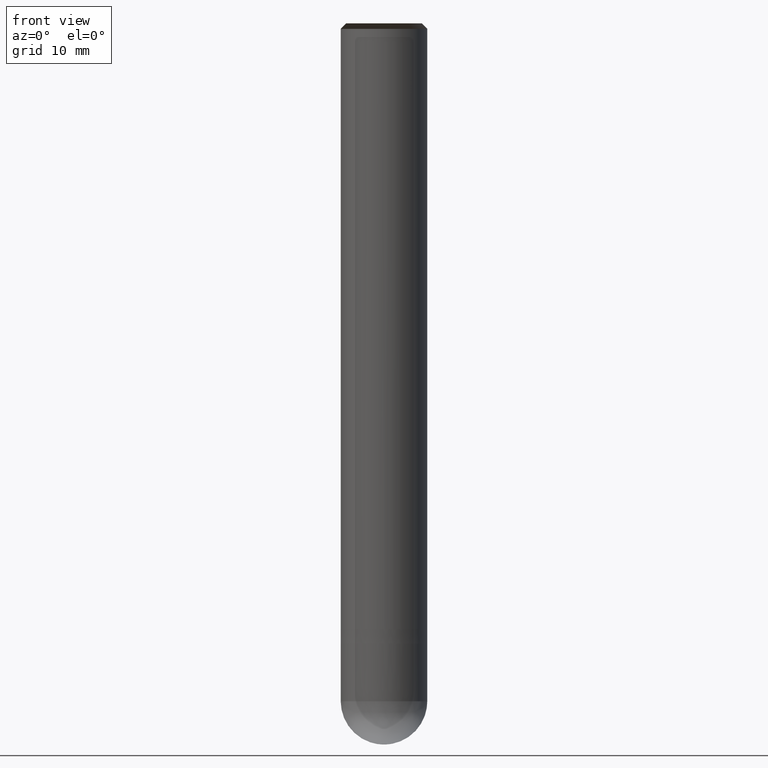
[diagram: clean part render]
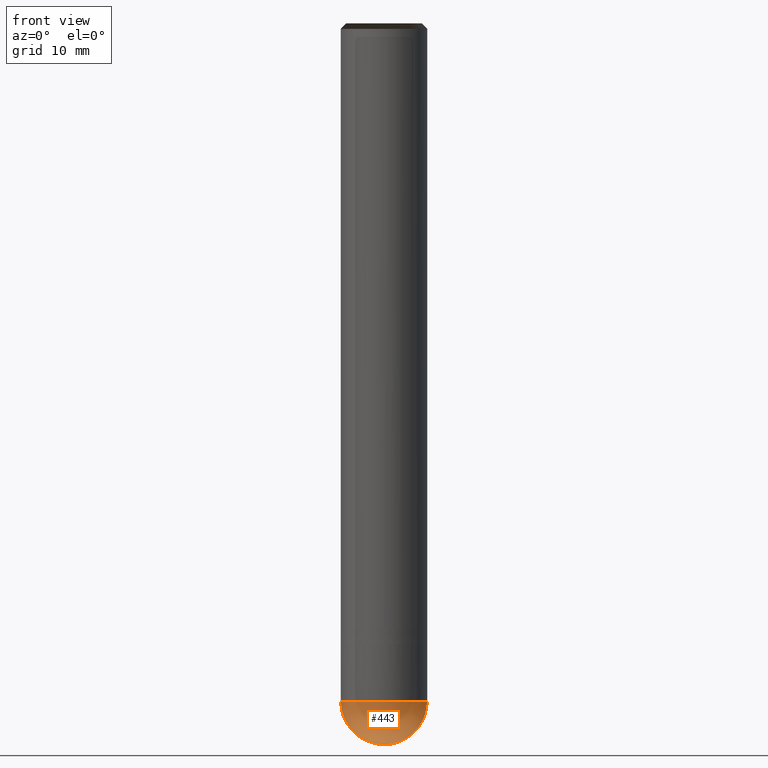
[diagram: same view with one face highlighted and labeled with its STEP entity id]
A machine part, front view. The second image highlights one B-rep face of the part: STEP entity #443.
In plain terms, the highlighted face is a freeform B-spline surface patch.
Its self-contained STEP definition (entity closure, byte-faithful):
#320=CARTESIAN_POINT('',(0.0,0.0,-16.0));
#321=CARTESIAN_POINT('',(6.0,0.0,-16.0));
#325=CARTESIAN_POINT('',(-6.0,0.0,-16.0));
#326=CARTESIAN_POINT('',(6.0,0.0,-10.0));
#330=CARTESIAN_POINT('',(-6.0,0.0,-10.0));
#337=CARTESIAN_POINT('',(-6.0,-6.0,-16.0));
#338=CARTESIAN_POINT('',(0.0,-6.0,-16.0));
#339=CARTESIAN_POINT('',(6.0,-6.0,-16.0));
#340=CARTESIAN_POINT('',(-6.0,-6.0,-10.0));
#341=CARTESIAN_POINT('',(0.0,-6.0,-10.0));
#342=CARTESIAN_POINT('',(6.0,-6.0,-10.0));
#428=(
BOUNDED_SURFACE()
B_SPLINE_SURFACE(2,2,(
(#320,#320,#320,#320,#320),
(#325,#337,#338,#339,#321),
(#330,#340,#341,#342,#326)
), .UNSPECIFIED.,.F.,.F.,.F.)
B_SPLINE_SURFACE_WITH_KNOTS((3,3),(3,2,3),(
0.0,1.0),(
0.0,0.5,1.0), .UNSPECIFIED.)
GEOMETRIC_REPRESENTATION_ITEM()
RATIONAL_B_SPLINE_SURFACE(((1.0,0.707106781187,1.0,0.707106781187,1.0),
(0.707106781187,0.5,0.707106781187,0.5,0.707106781187),
(1.0,0.707106781187,1.0,0.707106781187,1.0)
))
REPRESENTATION_ITEM('')
SURFACE()
);
#429=(
BOUNDED_CURVE()
B_SPLINE_CURVE(2,(#326,#321,#320),.UNSPECIFIED.,.F.,.F.)
B_SPLINE_CURVE_WITH_KNOTS((3,3),
(0.0,1.0),.UNSPECIFIED.)
CURVE()
GEOMETRIC_REPRESENTATION_ITEM()
RATIONAL_B_SPLINE_CURVE((1.0,0.707106781187,1.0))
REPRESENTATION_ITEM('')
);
#430=(
BOUNDED_CURVE()
B_SPLINE_CURVE(2,(#320,#325,#330),.UNSPECIFIED.,.F.,.F.)
B_SPLINE_CURVE_WITH_KNOTS((3,3),
(0.0,1.0),.UNSPECIFIED.)
CURVE()
GEOMETRIC_REPRESENTATION_ITEM()
RATIONAL_B_SPLINE_CURVE((1.0,0.707106781187,1.0))
REPRESENTATION_ITEM('')
);
#431=(
BOUNDED_CURVE()
B_SPLINE_CURVE(2,(#330,#340,#341,#342,#326),.UNSPECIFIED.,.F.,.F.)
B_SPLINE_CURVE_WITH_KNOTS((3,2,3),
(0.0,0.5,1.0),.UNSPECIFIED.)
CURVE()
GEOMETRIC_REPRESENTATION_ITEM()
RATIONAL_B_SPLINE_CURVE((1.0,0.707106781187,1.0,0.707106781187,1.0))
REPRESENTATION_ITEM('')
);
#432=VERTEX_POINT('',#320);
#433=VERTEX_POINT('',#326);
#434=VERTEX_POINT('',#330);
#435=EDGE_CURVE('',#433,#432,#429,.T.);
#436=EDGE_CURVE('',#432,#434,#430,.T.);
#437=EDGE_CURVE('',#434,#433,#431,.T.);
#438=ORIENTED_EDGE('',*,*,#435,.T.);
#439=ORIENTED_EDGE('',*,*,#436,.T.);
#440=ORIENTED_EDGE('',*,*,#437,.T.);
#441=EDGE_LOOP('',(#438,#439,#440));
#442=FACE_OUTER_BOUND('',#441,.T.);
#443=ADVANCED_FACE('',(#442),#428,.T.);